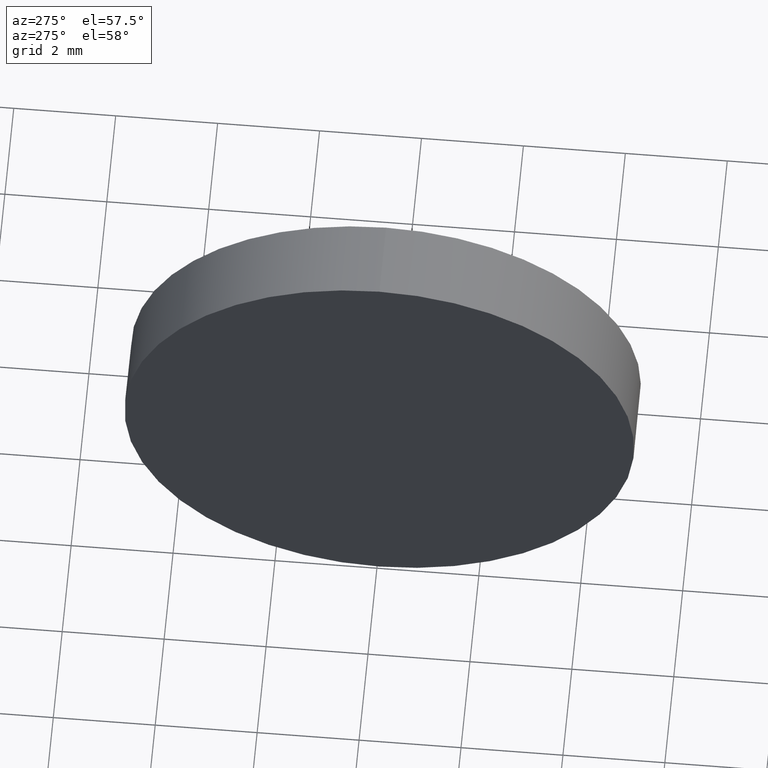
[diagram: clean part render]
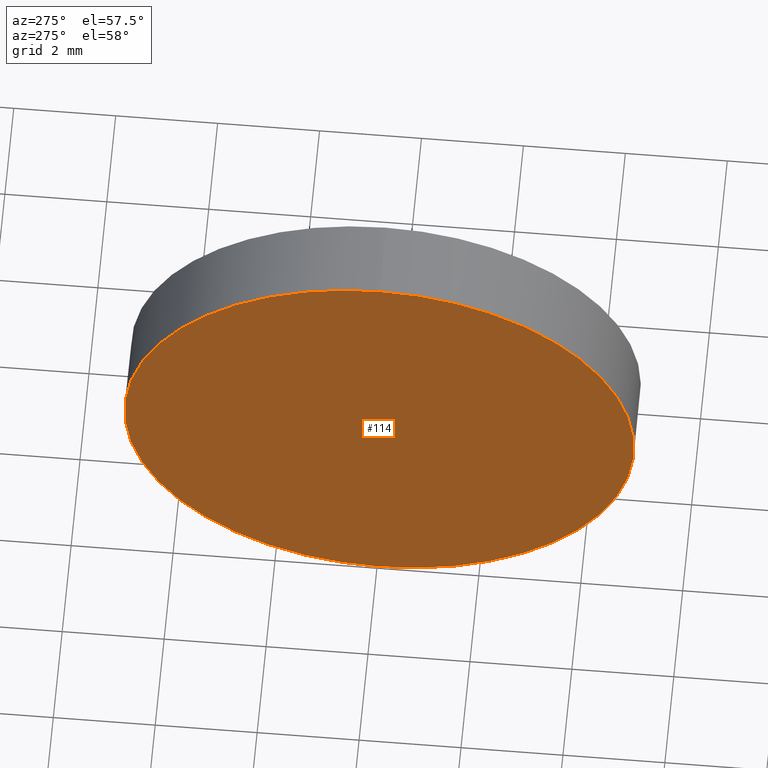
[diagram: same view with one face highlighted and labeled with its STEP entity id]
A machine part, auxiliary view. The second image highlights one B-rep face of the part: STEP entity #114.
In plain terms, the highlighted planar face has unit normal (1, 0, 0).
Its self-contained STEP definition (entity closure, byte-faithful):
#3 = CARTESIAN_POINT ( 'NONE',  ( 601.9052396090429500, 21.94448567432954200, 0.0000000000000000000 ) ) ;
#10 = FACE_OUTER_BOUND ( 'NONE', #80, .T. ) ;
#15 = ORIENTED_EDGE ( 'NONE', *, *, #16, .T. ) ;
#16 = EDGE_CURVE ( 'NONE', #86, #51, #168, .T. ) ;
#48 = DIRECTION ( 'NONE',  ( 0.0000000000000000000, 0.0000000000000000000, -1.000000000000000000 ) ) ;
#50 = PLANE ( 'NONE',  #69 ) ;
#51 = VERTEX_POINT ( 'NONE', #158 ) ;
#54 = EDGE_CURVE ( 'NONE', #51, #86, #83, .T. ) ;
#57 = AXIS2_PLACEMENT_3D ( 'NONE', #59, #172, #169 ) ;
#59 = CARTESIAN_POINT ( 'NONE',  ( 601.9052396090429500, 21.94448567432954200, 0.0000000000000000000 ) ) ;
#69 = AXIS2_PLACEMENT_3D ( 'NONE', #178, #151, #48 ) ;
#80 = EDGE_LOOP ( 'NONE', ( #15, #143 ) ) ;
#83 = CIRCLE ( 'NONE', #128, 4.999999999999997300 ) ;
#86 = VERTEX_POINT ( 'NONE', #113 ) ;
#113 = CARTESIAN_POINT ( 'NONE',  ( 601.9052396090429500, 21.94448567432954200, 4.999999999999997300 ) ) ;
#114 = ADVANCED_FACE ( 'NONE', ( #10 ), #50, .F. ) ;
#128 = AXIS2_PLACEMENT_3D ( 'NONE', #3, #161, #177 ) ;
#143 = ORIENTED_EDGE ( 'NONE', *, *, #54, .T. ) ;
#151 = DIRECTION ( 'NONE',  ( 1.000000000000000000, 0.0000000000000000000, 0.0000000000000000000 ) ) ;
#158 = CARTESIAN_POINT ( 'NONE',  ( 601.9052396090429500, 21.94448567432954200, -4.999999999999997300 ) ) ;
#161 = DIRECTION ( 'NONE',  ( -1.000000000000000000, -0.0000000000000000000, -0.0000000000000000000 ) ) ;
#168 = CIRCLE ( 'NONE', #57, 4.999999999999997300 ) ;
#169 = DIRECTION ( 'NONE',  ( 0.0000000000000000000, 0.0000000000000000000, 1.000000000000000000 ) ) ;
#172 = DIRECTION ( 'NONE',  ( -1.000000000000000000, -0.0000000000000000000, -0.0000000000000000000 ) ) ;
#177 = DIRECTION ( 'NONE',  ( 0.0000000000000000000, 0.0000000000000000000, 1.000000000000000000 ) ) ;
#178 = CARTESIAN_POINT ( 'NONE',  ( 601.9052396090429500, 21.94448567432954200, 0.0000000000000000000 ) ) ;